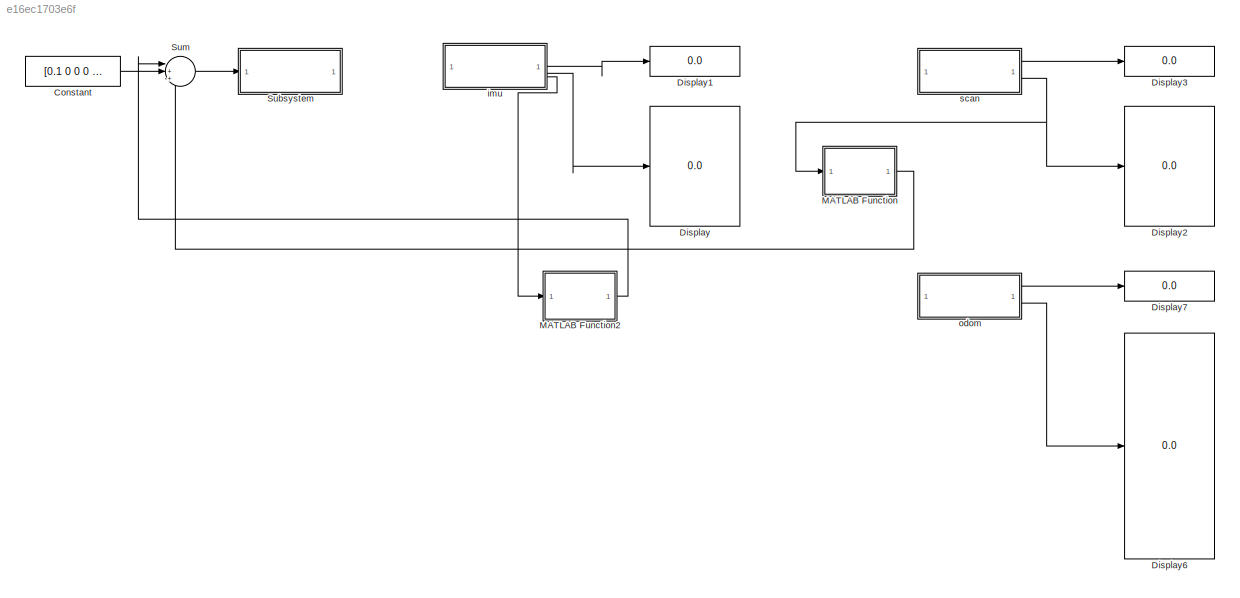
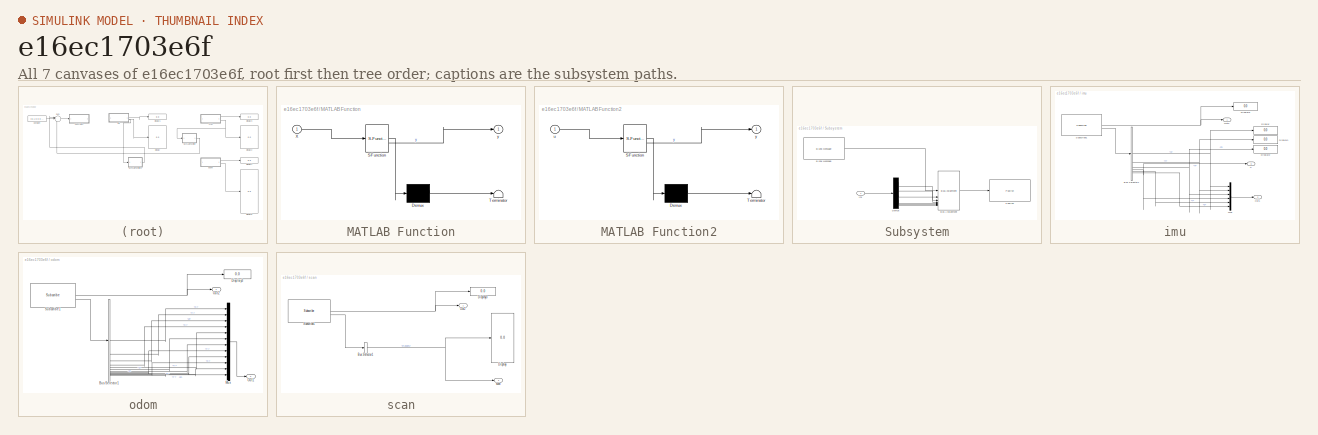
[diagram: thumbnail index - all 7 canvases of the model, root first then tree order]
MODEL slx_e16ec1703e6f
KIND model
CONFIG AbsTol = auto
CONFIG EnableMultiTasking = off
CONFIG FixedStep = auto
CONFIG MaxStep = auto
CONFIG MinStep = auto
CONFIG RelTol = 1e-3
CONFIG SampleTimeConstraint = Unconstrained
CONFIG SolverName = VariableStepAuto
CONFIG StartTime = 0.0
CONFIG StopTime = inf
BLOCK [Constant] Constant
  Value = [0.1 0 0 0 0 0]
BLOCK [Display] Display
  Decimation = 1
BLOCK [Display] Display1
  Decimation = 1
  NameLocation = left
BLOCK [Display] Display2
  Decimation = 1
BLOCK [Display] Display3
  Decimation = 1
  NameLocation = left
BLOCK [Display] Display6
  Decimation = 1
BLOCK [Display] Display7
  Decimation = 1
  NameLocation = left
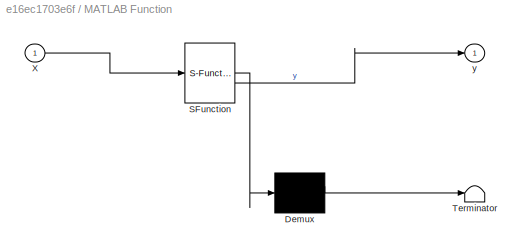
BLOCK [SubSystem] MATLAB Function
  ErrorFcn = Stateflow.Translate.translate
  LibrarySourceBlock = simulink/User-Defined\nFunctions/MATLAB Function
  PermitHierarchicalResolution = ExplicitOnly
  SFBlockType = MATLAB Function
  TreatAsAtomicUnit = on
BLOCK [Demux] MATLAB Function/ Demux 
  Outputs = 1
BLOCK [S-Function] MATLAB Function/ SFunction 
  EnableBusSupport = on
  FunctionName = sf_sfun
  PortCounts = [1 2]
  SFcnIsStateOwnerBlock = off
  SFunctionDeploymentMode = off
  Tag = Stateflow S-Function 2
BLOCK [Terminator] MATLAB Function/ Terminator 
BLOCK [Inport] MATLAB Function/X
BLOCK [Outport] MATLAB Function/y
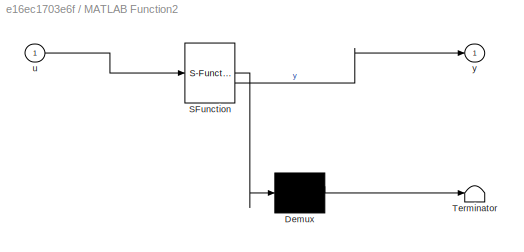
BLOCK [SubSystem] MATLAB Function2
  ErrorFcn = Stateflow.Translate.translate
  LibrarySourceBlock = simulink/User-Defined\nFunctions/MATLAB Function
  PermitHierarchicalResolution = ExplicitOnly
  SFBlockType = MATLAB Function
  TreatAsAtomicUnit = on
BLOCK [Demux] MATLAB Function2/ Demux 
  Outputs = 1
BLOCK [S-Function] MATLAB Function2/ SFunction 
  EnableBusSupport = on
  FunctionName = sf_sfun
  PortCounts = [1 2]
  SFcnIsStateOwnerBlock = off
  SFunctionDeploymentMode = off
  Tag = Stateflow S-Function 3
BLOCK [Terminator] MATLAB Function2/ Terminator 
BLOCK [Inport] MATLAB Function2/u
BLOCK [Outport] MATLAB Function2/y
BLOCK [SubSystem] Subsystem
BLOCK [Reference] Subsystem/Blank Message  REF=robotlib/Blank Message
  LibrarySourceBlock = roslib/ROS/Blank Message
  SourceBlock = robotlib/Blank Message
  SourceType = ROS Blank Message
BLOCK [BusAssignment] Subsystem/Bus Assignment
  AssignedSignals = Linear.X,Linear.Y,Linear.Z,Angular.X,Angular.Y,Angular.Z
BLOCK [Demux] Subsystem/Demux
  Outputs = 6
BLOCK [Inport] Subsystem/In1
BLOCK [Reference] Subsystem/Publish  REF=robotlib/Publish
  LibrarySourceBlock = roslib/ROS/Publish
  SourceBlock = robotlib/Publish
  SourceType = ROS Publish
BLOCK [Sum] Sum
  Inputs = |+++
BLOCK [SubSystem] imu
BLOCK [BusSelector] imu/Bus Selector1
  OutputSignals = AngularVelocity.X,AngularVelocity.Y,AngularVelocity.Z,LinearAcceleration.X,LinearAcceleration.Y,LinearAcceleration.Z
BLOCK [Display] imu/Display
  Decimation = 1
BLOCK [Display] imu/Display1
  Decimation = 1
BLOCK [Display] imu/Display2
  Decimation = 1
BLOCK [Display] imu/Display3
  Decimation = 1
BLOCK [Mux] imu/Mux
  DisplayOption = bar
  Inputs = 6
BLOCK [Outport] imu/Out1
  Port = 2
BLOCK [Outport] imu/Out2
BLOCK [Reference] imu/Subscribe1  REF=robotlib/Subscribe
  LibrarySourceBlock = roslib/ROS/Subscribe
  SourceBlock = robotlib/Subscribe
  SourceType = ROS Subscribe
BLOCK [Outport] imu/u
  Port = 3
BLOCK [SubSystem] odom
BLOCK [BusSelector] odom/Bus Selector1
  OutputSignals = Pose.Pose.Position.X,Pose.Pose.Position.Y,Pose.Pose.Position.Z,Pose.Pose.Orientation.X,Pose.Pose.Orientation.Y,Pose.Pose.Orientation.Z,Twist.Twist.Linear.X,Twist.Twist.Linear.Y,Twist.Twist.Linear.Z,Twist.Twist.Angular.X,Twist.Twist.Angular.Y,Twist.Twist.Angular.Z
BLOCK [Display] odom/Display3
  Decimation = 1
BLOCK [Mux] odom/Mux
  DisplayOption = bar
  Inputs = 12
BLOCK [Outport] odom/Out1
  Port = 2
BLOCK [Outport] odom/Out2
BLOCK [Reference] odom/Subscribe1  REF=robotlib/Subscribe
  LibrarySourceBlock = roslib/ROS/Subscribe
  SourceBlock = robotlib/Subscribe
  SourceType = ROS Subscribe
BLOCK [SubSystem] scan
BLOCK [BusSelector] scan/Bus Selector1
  OutputSignals = Ranges
BLOCK [Display] scan/Display
  Decimation = 1
BLOCK [Display] scan/Display3
  Decimation = 1
BLOCK [Outport] scan/Out2
BLOCK [Reference] scan/Subscribe1  REF=robotlib/Subscribe
  LibrarySourceBlock = roslib/ROS/Subscribe
  SourceBlock = robotlib/Subscribe
  SourceType = ROS Subscribe
BLOCK [Outport] scan/scan
  Port = 2
LINE Constant:1 -> Sum:1
LINE MATLAB Function2:1 -> Sum:2
LINE MATLAB Function:1 -> Sum:3
LINE Subsystem/Blank Message:1 -> Subsystem/Bus Assignment:1
LINE Subsystem/Bus Assignment:1 -> Subsystem/Publish:1
LINE Subsystem/Demux:1 -> Subsystem/Bus Assignment:2
LINE Subsystem/Demux:2 -> Subsystem/Bus Assignment:4
LINE Subsystem/Demux:3 -> Subsystem/Bus Assignment:3
LINE Subsystem/Demux:4 -> Subsystem/Bus Assignment:5
LINE Subsystem/Demux:5 -> Subsystem/Bus Assignment:6
LINE Subsystem/Demux:6 -> Subsystem/Bus Assignment:7
LINE Subsystem/In1:1 -> Subsystem/Demux:1
LINE Sum:1 -> Subsystem:1
NET imu/Bus Selector1:1 -> imu/Display:1, imu/Mux:1
NET imu/Bus Selector1:2 -> imu/Display1:1, imu/Mux:2
NET imu/Bus Selector1:3 -> imu/Display2:1, imu/Mux:3
NET imu/Bus Selector1:4 -> imu/Mux:4, imu/u:1
LINE imu/Bus Selector1:5 -> imu/Mux:5
LINE imu/Bus Selector1:6 -> imu/Mux:6
LINE imu/Mux:1 -> imu/Out1:1
NET imu/Subscribe1:1 -> imu/Display3:1, imu/Out2:1
LINE imu/Subscribe1:2 -> imu/Bus Selector1:1
LINE imu:1 -> Display1:1
LINE imu:2 -> Display:1
LINE imu:3 -> MATLAB Function2:1
LINE odom/Bus Selector1:1 -> odom/Mux:1
LINE odom/Bus Selector1:10 -> odom/Mux:10
LINE odom/Bus Selector1:11 -> odom/Mux:11
LINE odom/Bus Selector1:12 -> odom/Mux:12
LINE odom/Bus Selector1:2 -> odom/Mux:2
LINE odom/Bus Selector1:3 -> odom/Mux:3
LINE odom/Bus Selector1:4 -> odom/Mux:4
LINE odom/Bus Selector1:5 -> odom/Mux:5
LINE odom/Bus Selector1:6 -> odom/Mux:6
LINE odom/Bus Selector1:7 -> odom/Mux:7
LINE odom/Bus Selector1:8 -> odom/Mux:8
LINE odom/Bus Selector1:9 -> odom/Mux:9
LINE odom/Mux:1 -> odom/Out1:1
NET odom/Subscribe1:1 -> odom/Display3:1, odom/Out2:1
LINE odom/Subscribe1:2 -> odom/Bus Selector1:1
LINE odom:1 -> Display7:1
LINE odom:2 -> Display6:1
NET scan/Bus Selector1:1 -> scan/Display:1, scan/scan:1
NET scan/Subscribe1:1 -> scan/Display3:1, scan/Out2:1
LINE scan/Subscribe1:2 -> scan/Bus Selector1:1
LINE scan:1 -> Display3:1
NET scan:2 -> Display2:1, MATLAB Function:1
note: NET lines group one-source signal fan-out (src -> all destinations, sorted); 1:1 wires keep LINE
CHART MATLAB Function2 states=1 transitions=1
  STATE_LABEL 'eML_blk_kernel()'
  STATE_LABEL 'SCRIPT:\nfunction y = fcn(u)\n\nif(u > 5)\n    n = [-0.08 0 0 0 0 0];\nelseif(u < -5)\n    n = [0.08 0 0 0 0 0];\nelse\n    n = [0 0 0 0 0 0];\nend\n\ny = n;\n'
CHART MATLAB Function states=1 transitions=1
  STATE_LABEL 'eML_blk_kernel()'
  STATE_LABEL 'SCRIPT:\nfunction y = fcn(X)\nA = X(1,[1 2 3 4 5 6 7 8 9 10 118 119 120 121 122 123 124 125 126 127 128])\n\nB = -0.3.+A;\n\nC = sum(B);\n\nif(C == 0)\n   n = [-0.1 0 0 0 0 0];\nend\n\ny = n;\n'
CHART  states=0 transitions=0
CHART  states=0 transitions=0
